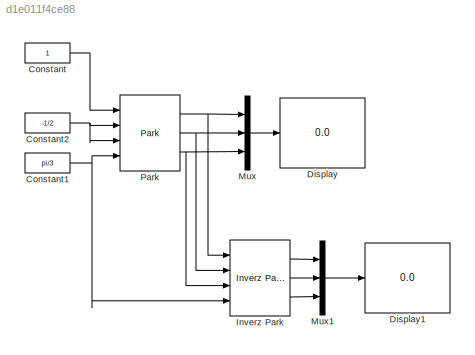
MODEL slx_d1e011f4ce88
KIND model
CONFIG AbsTol = auto
CONFIG EnableMultiTasking = off
CONFIG FixedStep = auto
CONFIG MaxStep = auto
CONFIG MinStep = auto
CONFIG RelTol = 1e-3
CONFIG SampleTimeConstraint = Unconstrained
CONFIG SolverName = VariableStepAuto
CONFIG StartTime = 0.0
CONFIG StopTime = 10.0
BLOCK [Constant] Constant
BLOCK [Constant] Constant1
  Value = pi/3
BLOCK [Constant] Constant2
  Value = -1/2
BLOCK [Display] Display
  Decimation = 1
  Ports = [1]
BLOCK [Display] Display1
  Decimation = 1
  Ports = [1]
BLOCK [Reference] Inverz Park  REF=EMD/Inverz Park
  Ports = [4, 3]
  SourceBlock = EMD/Inverz Park
BLOCK [Mux] Mux
  DisplayOption = bar
  Inputs = 3
  Ports = [3, 1]
BLOCK [Mux] Mux1
  DisplayOption = bar
  Inputs = 3
  Ports = [3, 1]
BLOCK [Reference] Park  REF=EMD/Park
  Ports = [4, 3]
  SourceBlock = EMD/Park
NET Constant1:1 -> Inverz Park:4, Park:4
NET Constant2:1 -> Park:2, Park:3
LINE Constant:1 -> Park:1
LINE Inverz Park:1 -> Mux1:1
LINE Inverz Park:2 -> Mux1:2
LINE Inverz Park:3 -> Mux1:3
LINE Mux1:1 -> Display1:1
LINE Mux:1 -> Display:1
NET Park:1 -> Inverz Park:1, Mux:1
NET Park:2 -> Inverz Park:2, Mux:2
NET Park:3 -> Inverz Park:3, Mux:3
note: NET lines group one-source signal fan-out (src -> all destinations, sorted); 1:1 wires keep LINE
